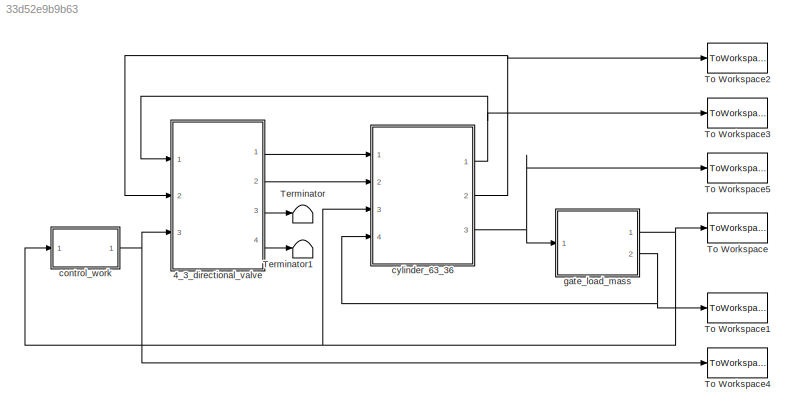
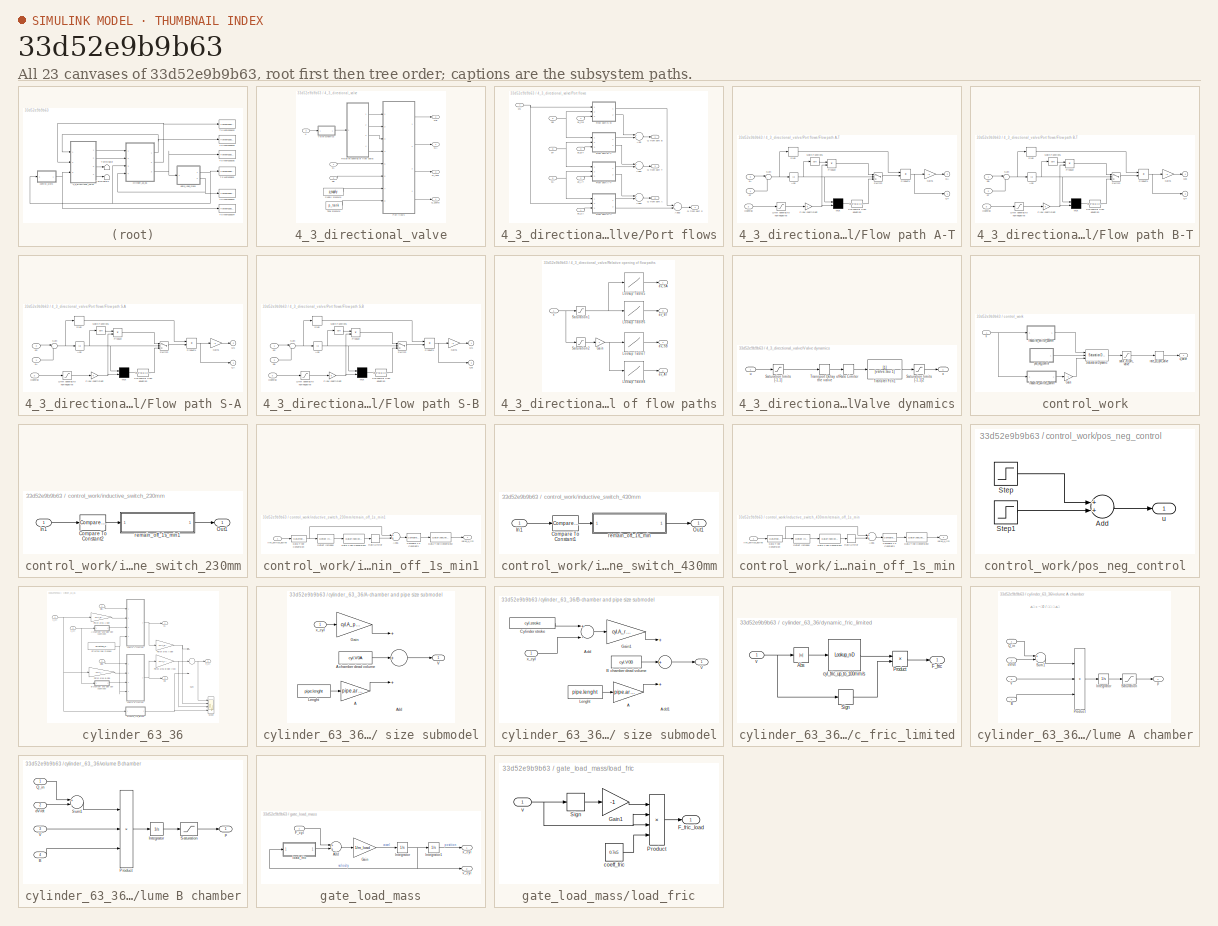
[diagram: thumbnail index - all 23 canvases of the model, root first then tree order]
MODEL slx_33d52e9b9b63
KIND model
CONFIG AbsTol = auto
CONFIG EnableMultiTasking = on
CONFIG FixedStep = 1e-3
CONFIG MaxStep = 1e-3
CONFIG MinStep = auto
CONFIG RelTol = 1e-3
CONFIG SampleTimeConstraint = Unconstrained
CONFIG Solver = FixedStepAuto
CONFIG SolverName = FixedStepAuto
CONFIG StartTime = 0
CONFIG StopTime = 15
BLOCK [SubSystem] 4_3_directional_valve
  Ports = [3, 4]
  RequestExecContextInheritance = off
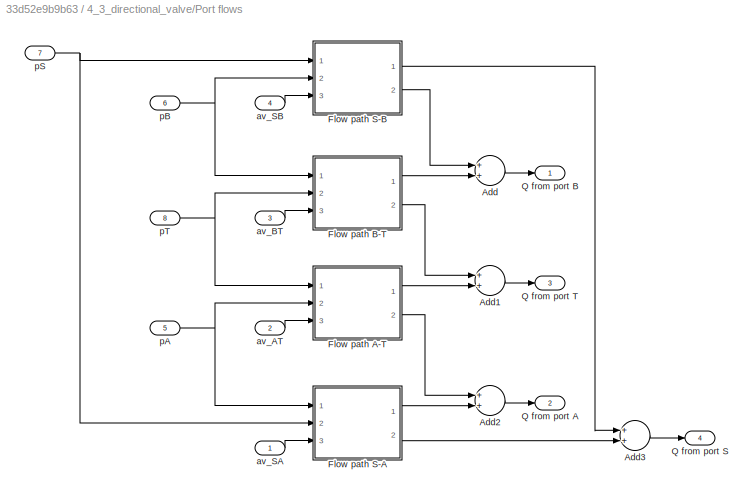
BLOCK [SubSystem] 4_3_directional_valve/Port flows
  Ports = [8, 4]
  RequestExecContextInheritance = off
BLOCK [Sum] 4_3_directional_valve/Port flows/Add
  InputSameDT = off
  OutDataTypeStr = Inherit: Inherit via internal rule
  Ports = [2, 1]
  SaturateOnIntegerOverflow = off
BLOCK [Sum] 4_3_directional_valve/Port flows/Add1
  InputSameDT = off
  OutDataTypeStr = Inherit: Inherit via internal rule
  Ports = [2, 1]
  SaturateOnIntegerOverflow = off
BLOCK [Sum] 4_3_directional_valve/Port flows/Add2
  InputSameDT = off
  OutDataTypeStr = Inherit: Inherit via internal rule
  Ports = [2, 1]
  SaturateOnIntegerOverflow = off
BLOCK [Sum] 4_3_directional_valve/Port flows/Add3
  InputSameDT = off
  OutDataTypeStr = Inherit: Inherit via internal rule
  Ports = [2, 1]
  SaturateOnIntegerOverflow = off
BLOCK [SubSystem] 4_3_directional_valve/Port flows/Flow path A-T
  Ports = [3, 2]
  RequestExecContextInheritance = off
BLOCK [Abs] 4_3_directional_valve/Port flows/Flow path A-T/Abs
  ZeroCross = off
BLOCK [Gain] 4_3_directional_valve/Port flows/Flow path A-T/Flow coefficient
  Gain = K
BLOCK [Gain] 4_3_directional_valve/Port flows/Flow path A-T/Gain1
  Gain = -1
BLOCK [Saturate] 4_3_directional_valve/Port flows/Flow path A-T/Limit opening to non-negative
  InputPortMap = u0
  LowerLimit = 0
  Ports = [1, 1]
  UpperLimit = inf
BLOCK [Math] 4_3_directional_valve/Port flows/Flow path A-T/Math Function1
  Operator = sqrt
  Ports = [1, 1]
BLOCK [Mux] 4_3_directional_valve/Port flows/Flow path A-T/Mux
  Inputs = 2
  Ports = [2, 1]
BLOCK [Inport] 4_3_directional_valve/Port flows/Flow path A-T/Opening
  IconDisplay = Port number
  Port = 3
BLOCK [Fcn] 4_3_directional_valve/Port flows/Flow path A-T/Polynomial flow equation
  Expr = u[2]*u[1]/2.0/sqrt(ptr)*(3-u[1]/ptr)
BLOCK [Product] 4_3_directional_valve/Port flows/Flow path A-T/Product
  Ports = [2, 1]
  RndMeth = Floor
BLOCK [Product] 4_3_directional_valve/Port flows/Flow path A-T/Product1
  Ports = [2, 1]
  RndMeth = Floor
BLOCK [Outport] 4_3_directional_valve/Port flows/Flow path A-T/QA
  IconDisplay = Port number
  InitialOutput = 0
  Port = 2
BLOCK [Outport] 4_3_directional_valve/Port flows/Flow path A-T/QT
  IconDisplay = Port number
  InitialOutput = 0
BLOCK [Signum] 4_3_directional_valve/Port flows/Flow path A-T/Sign
  ZeroCross = off
BLOCK [Sum] 4_3_directional_valve/Port flows/Flow path A-T/Sum
  IconShape = round
  InputSameDT = off
  Inputs = |+-
  OutDataTypeStr = Inherit: Inherit via internal rule
  Ports = [2, 1]
  SaturateOnIntegerOverflow = off
BLOCK [Switch] 4_3_directional_valve/Port flows/Flow path A-T/Switch
  Threshold = ptr
  ZeroCross = off
BLOCK [Inport] 4_3_directional_valve/Port flows/Flow path A-T/pA
  IconDisplay = Port number
  Port = 2
BLOCK [Inport] 4_3_directional_valve/Port flows/Flow path A-T/pT
  IconDisplay = Port number
BLOCK [SubSystem] 4_3_directional_valve/Port flows/Flow path B-T
  Ports = [3, 2]
  RequestExecContextInheritance = off
BLOCK [Abs] 4_3_directional_valve/Port flows/Flow path B-T/Abs
  ZeroCross = off
BLOCK [Gain] 4_3_directional_valve/Port flows/Flow path B-T/Flow coefficient
  Gain = K
BLOCK [Gain] 4_3_directional_valve/Port flows/Flow path B-T/Gain1
  Gain = -1
BLOCK [Saturate] 4_3_directional_valve/Port flows/Flow path B-T/Limit opening to non-negative
  InputPortMap = u0
  LowerLimit = 0
  Ports = [1, 1]
  UpperLimit = inf
BLOCK [Math] 4_3_directional_valve/Port flows/Flow path B-T/Math Function1
  Operator = sqrt
  Ports = [1, 1]
BLOCK [Mux] 4_3_directional_valve/Port flows/Flow path B-T/Mux
  Inputs = 2
  Ports = [2, 1]
BLOCK [Inport] 4_3_directional_valve/Port flows/Flow path B-T/Opening
  IconDisplay = Port number
  Port = 3
BLOCK [Fcn] 4_3_directional_valve/Port flows/Flow path B-T/Polynomial flow equation
  Expr = u[2]*u[1]/2.0/sqrt(ptr)*(3-u[1]/ptr)
BLOCK [Product] 4_3_directional_valve/Port flows/Flow path B-T/Product
  Ports = [2, 1]
  RndMeth = Floor
BLOCK [Product] 4_3_directional_valve/Port flows/Flow path B-T/Product1
  Ports = [2, 1]
  RndMeth = Floor
BLOCK [Outport] 4_3_directional_valve/Port flows/Flow path B-T/QB
  IconDisplay = Port number
  InitialOutput = 0
BLOCK [Outport] 4_3_directional_valve/Port flows/Flow path B-T/QT
  IconDisplay = Port number
  InitialOutput = 0
  Port = 2
BLOCK [Signum] 4_3_directional_valve/Port flows/Flow path B-T/Sign
  ZeroCross = off
BLOCK [Sum] 4_3_directional_valve/Port flows/Flow path B-T/Sum
  IconShape = round
  InputSameDT = off
  Inputs = |+-
  OutDataTypeStr = Inherit: Inherit via internal rule
  Ports = [2, 1]
  SaturateOnIntegerOverflow = off
BLOCK [Switch] 4_3_directional_valve/Port flows/Flow path B-T/Switch
  Threshold = ptr
  ZeroCross = off
BLOCK [Inport] 4_3_directional_valve/Port flows/Flow path B-T/pB
  IconDisplay = Port number
BLOCK [Inport] 4_3_directional_valve/Port flows/Flow path B-T/pT
  IconDisplay = Port number
  Port = 2
BLOCK [SubSystem] 4_3_directional_valve/Port flows/Flow path S-A
  Ports = [3, 2]
  RequestExecContextInheritance = off
BLOCK [Abs] 4_3_directional_valve/Port flows/Flow path S-A/Abs
  ZeroCross = off
BLOCK [Gain] 4_3_directional_valve/Port flows/Flow path S-A/Flow coefficient
  Gain = K
BLOCK [Gain] 4_3_directional_valve/Port flows/Flow path S-A/Gain1
  Gain = -1
BLOCK [Saturate] 4_3_directional_valve/Port flows/Flow path S-A/Limit opening to non-negative
  InputPortMap = u0
  LowerLimit = 0
  Ports = [1, 1]
  UpperLimit = inf
BLOCK [Math] 4_3_directional_valve/Port flows/Flow path S-A/Math Function1
  Operator = sqrt
  Ports = [1, 1]
BLOCK [Mux] 4_3_directional_valve/Port flows/Flow path S-A/Mux
  Inputs = 2
  Ports = [2, 1]
BLOCK [Inport] 4_3_directional_valve/Port flows/Flow path S-A/Opening
  IconDisplay = Port number
  Port = 3
BLOCK [Fcn] 4_3_directional_valve/Port flows/Flow path S-A/Polynomial flow equation
  Expr = u[2]*u[1]/2.0/sqrt(ptr)*(3-u[1]/ptr)
BLOCK [Product] 4_3_directional_valve/Port flows/Flow path S-A/Product
  Ports = [2, 1]
  RndMeth = Floor
BLOCK [Product] 4_3_directional_valve/Port flows/Flow path S-A/Product1
  Ports = [2, 1]
  RndMeth = Floor
BLOCK [Outport] 4_3_directional_valve/Port flows/Flow path S-A/QA
  IconDisplay = Port number
  InitialOutput = 0
BLOCK [Outport] 4_3_directional_valve/Port flows/Flow path S-A/QS
  IconDisplay = Port number
  InitialOutput = 0
  Port = 2
BLOCK [Signum] 4_3_directional_valve/Port flows/Flow path S-A/Sign
  ZeroCross = off
BLOCK [Sum] 4_3_directional_valve/Port flows/Flow path S-A/Sum
  IconShape = round
  InputSameDT = off
  Inputs = |+-
  OutDataTypeStr = Inherit: Inherit via internal rule
  Ports = [2, 1]
  SaturateOnIntegerOverflow = off
BLOCK [Switch] 4_3_directional_valve/Port flows/Flow path S-A/Switch
  Threshold = ptr
  ZeroCross = off
BLOCK [Inport] 4_3_directional_valve/Port flows/Flow path S-A/pA
  IconDisplay = Port number
BLOCK [Inport] 4_3_directional_valve/Port flows/Flow path S-A/pS
  IconDisplay = Port number
  Port = 2
BLOCK [SubSystem] 4_3_directional_valve/Port flows/Flow path S-B
  Ports = [3, 2]
  RequestExecContextInheritance = off
BLOCK [Abs] 4_3_directional_valve/Port flows/Flow path S-B/Abs
  ZeroCross = off
BLOCK [Gain] 4_3_directional_valve/Port flows/Flow path S-B/Flow coefficient
  Gain = K
BLOCK [Gain] 4_3_directional_valve/Port flows/Flow path S-B/Gain1
  Gain = -1
BLOCK [Saturate] 4_3_directional_valve/Port flows/Flow path S-B/Limit opening to non-negative
  InputPortMap = u0
  LowerLimit = 0
  Ports = [1, 1]
  UpperLimit = inf
BLOCK [Math] 4_3_directional_valve/Port flows/Flow path S-B/Math Function1
  Operator = sqrt
  Ports = [1, 1]
BLOCK [Mux] 4_3_directional_valve/Port flows/Flow path S-B/Mux
  Inputs = 2
  Ports = [2, 1]
BLOCK [Inport] 4_3_directional_valve/Port flows/Flow path S-B/Opening
  IconDisplay = Port number
  Port = 3
BLOCK [Fcn] 4_3_directional_valve/Port flows/Flow path S-B/Polynomial flow equation
  Expr = u[2]*u[1]/2.0/sqrt(ptr)*(3-u[1]/ptr)
BLOCK [Product] 4_3_directional_valve/Port flows/Flow path S-B/Product
  Ports = [2, 1]
  RndMeth = Floor
BLOCK [Product] 4_3_directional_valve/Port flows/Flow path S-B/Product1
  Ports = [2, 1]
  RndMeth = Floor
BLOCK [Outport] 4_3_directional_valve/Port flows/Flow path S-B/QB
  IconDisplay = Port number
  InitialOutput = 0
  Port = 2
BLOCK [Outport] 4_3_directional_valve/Port flows/Flow path S-B/QS
  IconDisplay = Port number
  InitialOutput = 0
BLOCK [Signum] 4_3_directional_valve/Port flows/Flow path S-B/Sign
  ZeroCross = off
BLOCK [Sum] 4_3_directional_valve/Port flows/Flow path S-B/Sum
  IconShape = round
  InputSameDT = off
  Inputs = |+-
  OutDataTypeStr = Inherit: Inherit via internal rule
  Ports = [2, 1]
  SaturateOnIntegerOverflow = off
BLOCK [Switch] 4_3_directional_valve/Port flows/Flow path S-B/Switch
  Threshold = ptr
  ZeroCross = off
BLOCK [Inport] 4_3_directional_valve/Port flows/Flow path S-B/pB
  IconDisplay = Port number
  Port = 2
BLOCK [Inport] 4_3_directional_valve/Port flows/Flow path S-B/pS
  IconDisplay = Port number
BLOCK [Outport] 4_3_directional_valve/Port flows/Q from port A
  IconDisplay = Port number
  Port = 2
BLOCK [Outport] 4_3_directional_valve/Port flows/Q from port B
  IconDisplay = Port number
BLOCK [Outport] 4_3_directional_valve/Port flows/Q from port S
  IconDisplay = Port number
  Port = 4
BLOCK [Outport] 4_3_directional_valve/Port flows/Q from port T
  IconDisplay = Port number
  Port = 3
BLOCK [Inport] 4_3_directional_valve/Port flows/av_AT
  IconDisplay = Port number
  Port = 2
BLOCK [Inport] 4_3_directional_valve/Port flows/av_BT
  IconDisplay = Port number
  Port = 3
BLOCK [Inport] 4_3_directional_valve/Port flows/av_SA
  IconDisplay = Port number
BLOCK [Inport] 4_3_directional_valve/Port flows/av_SB
  IconDisplay = Port number
  Port = 4
BLOCK [Inport] 4_3_directional_valve/Port flows/pA
  IconDisplay = Port number
  Port = 5
BLOCK [Inport] 4_3_directional_valve/Port flows/pB
  IconDisplay = Port number
  Port = 6
BLOCK [Inport] 4_3_directional_valve/Port flows/pS
  IconDisplay = Port number
  Port = 7
BLOCK [Inport] 4_3_directional_valve/Port flows/pT
  IconDisplay = Port number
  Port = 8
BLOCK [Outport] 4_3_directional_valve/QA
  IconDisplay = Port number
BLOCK [Outport] 4_3_directional_valve/QB
  IconDisplay = Port number
  Port = 2
BLOCK [Outport] 4_3_directional_valve/Q_pump
  IconDisplay = Port number
  Port = 4
BLOCK [Outport] 4_3_directional_valve/Q_tank 
  IconDisplay = Port number
  Port = 3
BLOCK [SubSystem] 4_3_directional_valve/Relative opening of flow paths
  Ports = [1, 4]
  RequestExecContextInheritance = off
BLOCK [Gain] 4_3_directional_valve/Relative opening of flow paths/Gain
  Gain = -1
  OutDataTypeStr = Inherit: Inherit via internal rule
  ParamDataTypeStr = Inherit: Inherit via internal rule
  SaturateOnIntegerOverflow = off
BLOCK [Lookup] 4_3_directional_valve/Relative opening of flow paths/Lookup Table5
  InputValues = [0.01 0.05 0.1 0.2 0.3 0.4 1]
  SaturateOnIntegerOverflow = off
  Table = [0.01 0.039 0.078 0.16 0.23 0.31 0.78]
BLOCK [Lookup] 4_3_directional_valve/Relative opening of flow paths/Lookup Table6
  InputValues = [0.01 0.05 0.1 0.2 0.3 0.4 1]
  SaturateOnIntegerOverflow = off
  Table = [0.01 0.036 0.072 0.14 0.22 0.29 0.72]
BLOCK [Lookup] 4_3_directional_valve/Relative opening of flow paths/Lookup Table7
  InputValues = [0.01 0.05 0.1 0.2 0.3 0.4 1]
  SaturateOnIntegerOverflow = off
  Table = [0.01 0.039 0.077 0.15 0.23 0.31 0.77]
BLOCK [Lookup] 4_3_directional_valve/Relative opening of flow paths/Lookup Table8
  InputValues = [0.01 0.05 0.1 0.2 0.3 0.4 1]
  SaturateOnIntegerOverflow = off
  Table = [0.01 0.035 0.070 0.14 0.21 0.28 0.70]
BLOCK [Saturate] 4_3_directional_valve/Relative opening of flow paths/Saturation1
  InputPortMap = u0
  LowerLimit = 0
  Ports = [1, 1]
  UpperLimit = 1
BLOCK [Saturate] 4_3_directional_valve/Relative opening of flow paths/Saturation2
  InputPortMap = u0
  LowerLimit = -1
  Ports = [1, 1]
  UpperLimit = 0
BLOCK [Outport] 4_3_directional_valve/Relative opening of flow paths/av_AT
  IconDisplay = Port number
  Port = 2
BLOCK [Outport] 4_3_directional_valve/Relative opening of flow paths/av_BT
  IconDisplay = Port number
  Port = 3
BLOCK [Outport] 4_3_directional_valve/Relative opening of flow paths/av_SA
  IconDisplay = Port number
BLOCK [Outport] 4_3_directional_valve/Relative opening of flow paths/av_SB
  IconDisplay = Port number
  Port = 4
BLOCK [Inport] 4_3_directional_valve/Relative opening of flow paths/x
  IconDisplay = Port number
BLOCK [Constant] 4_3_directional_valve/Supply pressure
  Value = p_supply
BLOCK [Constant] 4_3_directional_valve/Tank pressure
  Value = p_tank
BLOCK [SubSystem] 4_3_directional_valve/Valve dynamics
  Ports = [1, 1]
  RequestExecContextInheritance = off
BLOCK [RateLimiter] 4_3_directional_valve/Valve dynamics/Rate Limiter
  FallingSlewLimit = -valve.ratelimit
  RisingSlewLimit = valve.ratelimit
  SampleTimeMode = inherited
BLOCK [Saturate] 4_3_directional_valve/Valve dynamics/Saturation limits [-1,1]
  InputPortMap = u0
  LowerLimit = -1
  Ports = [1, 1]
  UpperLimit = 1
BLOCK [Saturate] 4_3_directional_valve/Valve dynamics/Saturation limits [-1,1]2
  InputPortMap = u0
  LowerLimit = -1
  Ports = [1, 1]
  UpperLimit = 1
BLOCK [TransferFcn] 4_3_directional_valve/Valve dynamics/Transfer Fcn1
  Denominator = [valve.tau 1]
BLOCK [TransportDelay] 4_3_directional_valve/Valve dynamics/Transport Delay of the valve
  DelayTime = valve.delay
  Ports = [1, 1]
BLOCK [Inport] 4_3_directional_valve/Valve dynamics/u
  IconDisplay = Port number
BLOCK [Outport] 4_3_directional_valve/Valve dynamics/x
  IconDisplay = Port number
BLOCK [Inport] 4_3_directional_valve/pA
  IconDisplay = Port number
BLOCK [Inport] 4_3_directional_valve/pB
  IconDisplay = Port number
  Port = 2
BLOCK [Inport] 4_3_directional_valve/u
  IconDisplay = Port number
  Port = 3
BLOCK [Terminator] Terminator
BLOCK [Terminator] Terminator1
BLOCK [ToWorkspace] To Workspace
  MaxDataPoints = inf
  Ports = [1]
  SampleTime = -1
  VariableName = x_sim
BLOCK [ToWorkspace] To Workspace1
  MaxDataPoints = inf
  Ports = [1]
  SampleTime = -1
  VariableName = v_sim
BLOCK [ToWorkspace] To Workspace2
  MaxDataPoints = inf
  Ports = [1]
  SampleTime = -1
  VariableName = pB_sim
BLOCK [ToWorkspace] To Workspace3
  MaxDataPoints = inf
  Ports = [1]
  SampleTime = -1
  VariableName = pA_sim
BLOCK [ToWorkspace] To Workspace4
  MaxDataPoints = inf
  Ports = [1]
  SampleTime = -1
  VariableName = u_sim
BLOCK [ToWorkspace] To Workspace5
  MaxDataPoints = inf
  Ports = [1]
  SampleTime = -1
  VariableName = F_sim
BLOCK [SubSystem] control_work
  Ports = [1, 1]
  RequestExecContextInheritance = off
BLOCK [Gain] control_work/Gain
  Gain = -1
  OutDataTypeStr = Inherit: Inherit via internal rule
  ParamDataTypeStr = Inherit: Inherit via internal rule
  SaturateOnIntegerOverflow = off
BLOCK [Reference] control_work/Saturation Dynamic  REF=simulink/Discontinuities/Saturation
Dynamic
  Ports = [3, 1]
  SourceBlock = simulink/Discontinuities/Saturation\nDynamic
  SourceProductBaseCode = SL
  SourceProductName = Simulink
  SourceType = Saturation Dynamic
BLOCK [SubSystem] control_work/inductive_switch_230mm
  Ports = [1, 1]
  RequestExecContextInheritance = off
BLOCK [Reference] control_work/inductive_switch_230mm/Compare To Constant2  REF=simulink/Logic and Bit
Operations/Compare
To Constant
  Ports = [1, 1]
  SourceBlock = simulink/Logic and Bit\nOperations/Compare\nTo Constant
  SourceProductBaseCode = SL
  SourceProductName = Simulink
  SourceType = Compare To Constant
BLOCK [Inport] control_work/inductive_switch_230mm/In1
  IconDisplay = Port number
BLOCK [Outport] control_work/inductive_switch_230mm/Out1
  IconDisplay = Port number
BLOCK [SubSystem] control_work/inductive_switch_230mm/remain_off_1s_min1
  Ports = [1, 1]
  RequestExecContextInheritance = off
BLOCK [Sum] control_work/inductive_switch_230mm/remain_off_1s_min1/Add1
  InputSameDT = off
  OutDataTypeStr = Inherit: Inherit via internal rule
  Ports = [2, 1]
  SaturateOnIntegerOverflow = off
BLOCK [Reference] control_work/inductive_switch_230mm/remain_off_1s_min1/Compare To Constant3  REF=simulink/Logic and Bit
Operations/Compare
To Constant
  Ports = [1, 1]
  SourceBlock = simulink/Logic and Bit\nOperations/Compare\nTo Constant
  SourceProductBaseCode = SL
  SourceProductName = Simulink
  SourceType = Compare To Constant
BLOCK [DataTypeConversion] control_work/inductive_switch_230mm/remain_off_1s_min1/Data Type Conversion
  OutDataTypeStr = double
  RndMeth = Floor
  SaturateOnIntegerOverflow = off
BLOCK [DataTypeConversion] control_work/inductive_switch_230mm/remain_off_1s_min1/Data Type Conversion1
  OutDataTypeStr = double
  RndMeth = Floor
  SaturateOnIntegerOverflow = off
BLOCK [DataTypeConversion] control_work/inductive_switch_230mm/remain_off_1s_min1/Data Type Conversion2
  OutDataTypeStr = double
  RndMeth = Floor
  SaturateOnIntegerOverflow = off
BLOCK [Reference] control_work/inductive_switch_230mm/remain_off_1s_min1/Detect Increase  REF=simulink/Logic and Bit
Operations/Detect
Increase
  Ports = [1, 1]
  SourceBlock = simulink/Logic and Bit\nOperations/Detect\nIncrease
  SourceProductBaseCode = SL
  SourceProductName = Simulink
  SourceType = Detect Increase
BLOCK [RateLimiter] control_work/inductive_switch_230mm/remain_off_1s_min1/Rate Limiter
  RisingSlewLimit = 1e6
  SampleTimeMode = inherited
BLOCK [Inport] control_work/inductive_switch_230mm/remain_off_1s_min1/lim_switch_active
  IconDisplay = Port number
BLOCK [Outport] control_work/inductive_switch_230mm/remain_off_1s_min1/valve_u_lim
  IconDisplay = Port number
BLOCK [SubSystem] control_work/inductive_switch_430mm
  Ports = [1, 1]
  RequestExecContextInheritance = off
BLOCK [Reference] control_work/inductive_switch_430mm/Compare To Constant1  REF=simulink/Logic and Bit
Operations/Compare
To Constant
  Ports = [1, 1]
  SourceBlock = simulink/Logic and Bit\nOperations/Compare\nTo Constant
  SourceProductBaseCode = SL
  SourceProductName = Simulink
  SourceType = Compare To Constant
BLOCK [Inport] control_work/inductive_switch_430mm/In1
  IconDisplay = Port number
BLOCK [Outport] control_work/inductive_switch_430mm/Out1
  IconDisplay = Port number
BLOCK [SubSystem] control_work/inductive_switch_430mm/remain_off_1s_min
  Ports = [1, 1]
  RequestExecContextInheritance = off
BLOCK [Sum] control_work/inductive_switch_430mm/remain_off_1s_min/Add1
  InputSameDT = off
  OutDataTypeStr = Inherit: Inherit via internal rule
  Ports = [2, 1]
  SaturateOnIntegerOverflow = off
BLOCK [Reference] control_work/inductive_switch_430mm/remain_off_1s_min/Compare To Constant3  REF=simulink/Logic and Bit
Operations/Compare
To Constant
  Ports = [1, 1]
  SourceBlock = simulink/Logic and Bit\nOperations/Compare\nTo Constant
  SourceProductBaseCode = SL
  SourceProductName = Simulink
  SourceType = Compare To Constant
BLOCK [DataTypeConversion] control_work/inductive_switch_430mm/remain_off_1s_min/Data Type Conversion
  OutDataTypeStr = double
  RndMeth = Floor
  SaturateOnIntegerOverflow = off
BLOCK [DataTypeConversion] control_work/inductive_switch_430mm/remain_off_1s_min/Data Type Conversion1
  OutDataTypeStr = double
  RndMeth = Floor
  SaturateOnIntegerOverflow = off
BLOCK [DataTypeConversion] control_work/inductive_switch_430mm/remain_off_1s_min/Data Type Conversion2
  OutDataTypeStr = double
  RndMeth = Floor
  SaturateOnIntegerOverflow = off
BLOCK [Reference] control_work/inductive_switch_430mm/remain_off_1s_min/Detect Increase  REF=simulink/Logic and Bit
Operations/Detect
Increase
  Ports = [1, 1]
  SourceBlock = simulink/Logic and Bit\nOperations/Detect\nIncrease
  SourceProductBaseCode = SL
  SourceProductName = Simulink
  SourceType = Detect Increase
BLOCK [RateLimiter] control_work/inductive_switch_430mm/remain_off_1s_min/Rate Limiter
  RisingSlewLimit = 1e6
  SampleTimeMode = inherited
BLOCK [Inport] control_work/inductive_switch_430mm/remain_off_1s_min/lim_switch_active
  IconDisplay = Port number
BLOCK [Outport] control_work/inductive_switch_430mm/remain_off_1s_min/valve_u_lim
  IconDisplay = Port number
BLOCK [SubSystem] control_work/pos_neg_control
  Ports = [0, 1]
  RequestExecContextInheritance = off
BLOCK [Sum] control_work/pos_neg_control/Add
  InputSameDT = off
  OutDataTypeStr = Inherit: Inherit via internal rule
  Ports = [2, 1]
  SaturateOnIntegerOverflow = off
BLOCK [Step] control_work/pos_neg_control/Step
  SampleTime = 0
BLOCK [Step] control_work/pos_neg_control/Step1
  After = -2
  SampleTime = 0
  Time = 10
BLOCK [Outport] control_work/pos_neg_control/u
  IconDisplay = Port number
BLOCK [RateLimiter] control_work/rate_20_lpm_valve 
  FallingSlewLimit = -1/0.3
  RisingSlewLimit = 1/0.3
  SampleTimeMode = inherited
BLOCK [Saturate] control_work/satur_20_lpm_valve
  InputPortMap = u0
  LowerLimit = -0.88
  Ports = [1, 1]
  UpperLimit = 0.65
BLOCK [Outport] control_work/u_valve
  IconDisplay = Port number
BLOCK [Inport] control_work/x
  IconDisplay = Port number
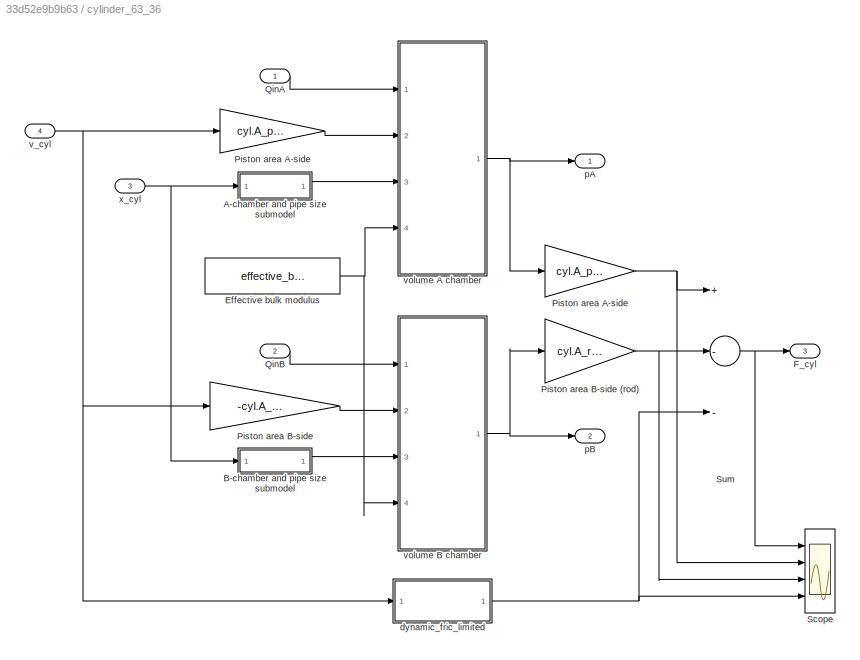
BLOCK [SubSystem] cylinder_63_36
  Ports = [4, 3]
  RequestExecContextInheritance = off
BLOCK [SubSystem] cylinder_63_36/A-chamber and pipe size submodel
  Ports = [1, 1]
  RequestExecContextInheritance = off
BLOCK [Gain] cylinder_63_36/A-chamber and pipe size submodel/A
  Gain = pipe.area
  OutDataTypeStr = Inherit: Inherit via internal rule
  ParamDataTypeStr = Inherit: Inherit via internal rule
  SaturateOnIntegerOverflow = off
BLOCK [Constant] cylinder_63_36/A-chamber and pipe size submodel/A chamber dead volume
  Value = cyl.V0A
BLOCK [Sum] cylinder_63_36/A-chamber and pipe size submodel/Add
  InputSameDT = off
  Inputs = +++
  OutDataTypeStr = Inherit: Inherit via internal rule
  Ports = [3, 1]
  SaturateOnIntegerOverflow = off
BLOCK [Gain] cylinder_63_36/A-chamber and pipe size submodel/Gain
  Gain = cyl.A_piston
  OutDataTypeStr = Inherit: Inherit via internal rule
  ParamDataTypeStr = Inherit: Inherit via internal rule
  SaturateOnIntegerOverflow = off
BLOCK [Constant] cylinder_63_36/A-chamber and pipe size submodel/Lenght
  Value = pipe.lenght
BLOCK [Outport] cylinder_63_36/A-chamber and pipe size submodel/V
  IconDisplay = Port number
BLOCK [Inport] cylinder_63_36/A-chamber and pipe size submodel/x_cyl
  IconDisplay = Port number
BLOCK [SubSystem] cylinder_63_36/B-chamber and pipe size submodel
  Ports = [1, 1]
  RequestExecContextInheritance = off
BLOCK [Gain] cylinder_63_36/B-chamber and pipe size submodel/A
  Gain = pipe.area
  OutDataTypeStr = Inherit: Inherit via internal rule
  ParamDataTypeStr = Inherit: Inherit via internal rule
  SaturateOnIntegerOverflow = off
BLOCK [Sum] cylinder_63_36/B-chamber and pipe size submodel/Add
  InputSameDT = off
  Inputs = +-
  OutDataTypeStr = Inherit: Inherit via internal rule
  Ports = [2, 1]
  SaturateOnIntegerOverflow = off
BLOCK [Sum] cylinder_63_36/B-chamber and pipe size submodel/Add1
  InputSameDT = off
  Inputs = +++
  OutDataTypeStr = Inherit: Inherit via internal rule
  Ports = [3, 1]
  SaturateOnIntegerOverflow = off
BLOCK [Constant] cylinder_63_36/B-chamber and pipe size submodel/B chamber dead volume
  Value = cyl.V0B
BLOCK [Constant] cylinder_63_36/B-chamber and pipe size submodel/Cylinder stroke
  Value = cyl.stroke
BLOCK [Gain] cylinder_63_36/B-chamber and pipe size submodel/Gain1
  Gain = cyl.A_rodside
  OutDataTypeStr = Inherit: Inherit via internal rule
  ParamDataTypeStr = Inherit: Inherit via internal rule
  SaturateOnIntegerOverflow = off
BLOCK [Constant] cylinder_63_36/B-chamber and pipe size submodel/Lenght
  Value = pipe.lenght
BLOCK [Outport] cylinder_63_36/B-chamber and pipe size submodel/V
  IconDisplay = Port number
BLOCK [Inport] cylinder_63_36/B-chamber and pipe size submodel/x_cyl
  IconDisplay = Port number
BLOCK [Constant] cylinder_63_36/Effective bulk modulus
  Value = effective_bulkmodulus
BLOCK [Outport] cylinder_63_36/F_cyl
  IconDisplay = Port number
  Port = 3
BLOCK [Gain] cylinder_63_36/Piston area A-side
  Gain = cyl.A_piston
  OutDataTypeStr = Inherit: Inherit via internal rule
  ParamDataTypeStr = Inherit: Inherit via internal rule
  SaturateOnIntegerOverflow = off
BLOCK [Gain] cylinder_63_36/Piston area B-side
  Gain = -cyl.A_rodside
  OutDataTypeStr = Inherit: Inherit via internal rule
  ParamDataTypeStr = Inherit: Inherit via internal rule
  SaturateOnIntegerOverflow = off
BLOCK [Gain] cylinder_63_36/Piston area B-side (rod)
  Gain = cyl.A_rodside
  OutDataTypeStr = Inherit: Inherit via internal rule
  ParamDataTypeStr = Inherit: Inherit via internal rule
  SaturateOnIntegerOverflow = off
BLOCK [Inport] cylinder_63_36/QinA
  IconDisplay = Port number
BLOCK [Inport] cylinder_63_36/QinB
  IconDisplay = Port number
  Port = 2
BLOCK [Scope] cylinder_63_36/Scope
  Floating = off
  NumInputPorts = 4
  Ports = [4]
  ScopeSpecificationString = Simulink.scopes.TimeScopeBlockCfg('CurrentConfiguration', extmgr.ConfigurationSet(extmgr.Configuration('Core','General UI',true),extmgr.Configuration('Core','Source UI',true),extmgr.Configuration('Sources','WiredSimulink',true),extmgr.Configuration('Visuals','Time Domain',true,'SerializedDisplays',{struct('MinYLimReal','-3356.48237','MaxYLimReal','15799.75819','YLabelReal','','MinYLimMag','  0.000...<+1451ch>
BLOCK [Sum] cylinder_63_36/Sum
  InputSameDT = off
  Inputs = +--
  OutDataTypeStr = Inherit: Inherit via internal rule
  Ports = [3, 1]
  SaturateOnIntegerOverflow = off
BLOCK [SubSystem] cylinder_63_36/dynamic_fric_limited
  Ports = [1, 1]
  RequestExecContextInheritance = off
BLOCK [Abs] cylinder_63_36/dynamic_fric_limited/Abs
  SaturateOnIntegerOverflow = off
BLOCK [Outport] cylinder_63_36/dynamic_fric_limited/F_fric
  IconDisplay = Port number
BLOCK [Product] cylinder_63_36/dynamic_fric_limited/Product
  InputSameDT = off
  OutDataTypeStr = Inherit: Inherit via internal rule
  Ports = [2, 1]
  RndMeth = Floor
  SaturateOnIntegerOverflow = off
BLOCK [Signum] cylinder_63_36/dynamic_fric_limited/Sign
BLOCK [Lookup_n-D] cylinder_63_36/dynamic_fric_limited/cyl_fric_up_to_100mm//s
  BreakpointsForDimension1 = [0\n5\n10\n15\n20\n25\n30\n35\n40\n45\n50\n55\n60\n65\n70\n75\n80\n85\n90\n95\n100]./1e3;
  InternalRulePriority = Speed
  NumberOfTableDimensions = 1
  Ports = [1, 1]
  RndMeth = Simplest
  Table = [0\n242\n550\n838\n996\n972\n850\n757\n728\n733\n744\n753\n759\n765\n770\n775\n780\n785\n790\n795\n800];
BLOCK [Inport] cylinder_63_36/dynamic_fric_limited/v
  IconDisplay = Port number
BLOCK [Outport] cylinder_63_36/pA
  IconDisplay = Port number
BLOCK [Outport] cylinder_63_36/pB
  IconDisplay = Port number
  Port = 2
BLOCK [Inport] cylinder_63_36/v_cyl
  IconDisplay = Port number
  Port = 4
BLOCK [SubSystem] cylinder_63_36/volume A chamber
  Ports = [4, 1]
  RequestExecContextInheritance = off
BLOCK [Inport] cylinder_63_36/volume A chamber/ B
  IconDisplay = Port number
  Port = 4
BLOCK [Inport] cylinder_63_36/volume A chamber/ V
  IconDisplay = Port number
  Port = 3
BLOCK [Inport] cylinder_63_36/volume A chamber/ dV//dt
  IconDisplay = Port number
  Port = 2
BLOCK [Integrator] cylinder_63_36/volume A chamber/Integrator
  AbsoluteTolerance = 10
  InitialCondition = cyl.p0A
  Ports = [1, 1]
BLOCK [Product] cylinder_63_36/volume A chamber/Product
  Inputs = */*
  Ports = [3, 1]
  RndMeth = Floor
BLOCK [Inport] cylinder_63_36/volume A chamber/Q_in
  IconDisplay = Port number
BLOCK [Saturate] cylinder_63_36/volume A chamber/Saturation
  InputPortMap = u0
  LowerLimit = -1e5
  Ports = [1, 1]
  UpperLimit = inf
BLOCK [Sum] cylinder_63_36/volume A chamber/Sum1
  Inputs = +-
  Ports = [2, 1]
BLOCK [Outport] cylinder_63_36/volume A chamber/p
  IconDisplay = Port number
BLOCK [SubSystem] cylinder_63_36/volume B chamber
  Ports = [4, 1]
  RequestExecContextInheritance = off
BLOCK [Inport] cylinder_63_36/volume B chamber/ B
  IconDisplay = Port number
  Port = 4
BLOCK [Inport] cylinder_63_36/volume B chamber/ V
  IconDisplay = Port number
  Port = 3
BLOCK [Inport] cylinder_63_36/volume B chamber/ dV//dt
  IconDisplay = Port number
  Port = 2
BLOCK [Integrator] cylinder_63_36/volume B chamber/Integrator
  AbsoluteTolerance = 10
  InitialCondition = cyl.p0B
  Ports = [1, 1]
BLOCK [Product] cylinder_63_36/volume B chamber/Product
  Inputs = */*
  Ports = [3, 1]
  RndMeth = Floor
BLOCK [Inport] cylinder_63_36/volume B chamber/Q_in
  IconDisplay = Port number
BLOCK [Saturate] cylinder_63_36/volume B chamber/Saturation
  InputPortMap = u0
  LowerLimit = -1e5
  Ports = [1, 1]
  UpperLimit = inf
BLOCK [Sum] cylinder_63_36/volume B chamber/Sum1
  Inputs = +-
  Ports = [2, 1]
BLOCK [Outport] cylinder_63_36/volume B chamber/p
  IconDisplay = Port number
BLOCK [Inport] cylinder_63_36/x_cyl
  IconDisplay = Port number
  Port = 3
BLOCK [SubSystem] gate_load_mass
  Ports = [1, 2]
  RequestExecContextInheritance = off
BLOCK [Sum] gate_load_mass/Add
  InputSameDT = off
  OutDataTypeStr = Inherit: Inherit via internal rule
  Ports = [2, 1]
  SaturateOnIntegerOverflow = off
BLOCK [Inport] gate_load_mass/F_cyl
  IconDisplay = Port number
BLOCK [Gain] gate_load_mass/Gain
  Gain = 1/m_load
  OutDataTypeStr = Inherit: Inherit via internal rule
  ParamDataTypeStr = Inherit: Inherit via internal rule
  SaturateOnIntegerOverflow = off
BLOCK [Integrator] gate_load_mass/Integrator
  Ports = [1, 1]
BLOCK [Integrator] gate_load_mass/Integrator1
  InitialCondition = cyl.x_init
  Ports = [1, 1]
BLOCK [SubSystem] gate_load_mass/load_fric
  Ports = [1, 1]
  RequestExecContextInheritance = off
BLOCK [Outport] gate_load_mass/load_fric/F_fric_load
  IconDisplay = Port number
BLOCK [Gain] gate_load_mass/load_fric/Gain1
  Gain = -1
  OutDataTypeStr = Inherit: Inherit via internal rule
  ParamDataTypeStr = Inherit: Inherit via internal rule
  SaturateOnIntegerOverflow = off
BLOCK [Product] gate_load_mass/load_fric/Product
  InputSameDT = off
  Inputs = 4
  OutDataTypeStr = Inherit: Inherit via internal rule
  Ports = [4, 1]
  RndMeth = Floor
  SaturateOnIntegerOverflow = off
BLOCK [Signum] gate_load_mass/load_fric/Sign
BLOCK [Constant] gate_load_mass/load_fric/coeff_fric
  Value = 0.7e5
BLOCK [Inport] gate_load_mass/load_fric/v
  IconDisplay = Port number
BLOCK [Outport] gate_load_mass/v_cyl
  IconDisplay = Port number
  Port = 2
BLOCK [Outport] gate_load_mass/x_cyl
  IconDisplay = Port number
ANNOTATION cylinder_63_36/volume A chamber: ∆𝑉 = −𝑉0 / 𝐵𝑛 ∗ ∆𝑝
LINE 4_3_directional_valve/Port flows/Add1:1 -> 4_3_directional_valve/Port flows/Q from port T:1
LINE 4_3_directional_valve/Port flows/Add2:1 -> 4_3_directional_valve/Port flows/Q from port A:1
LINE 4_3_directional_valve/Port flows/Add3:1 -> 4_3_directional_valve/Port flows/Q from port S:1
LINE 4_3_directional_valve/Port flows/Add:1 -> 4_3_directional_valve/Port flows/Q from port B:1
NET 4_3_directional_valve/Port flows/Flow path A-T/Abs:1 -> 4_3_directional_valve/Port flows/Flow path A-T/Math Function1:1, 4_3_directional_valve/Port flows/Flow path A-T/Mux:1, 4_3_directional_valve/Port flows/Flow path A-T/Switch:2
NET 4_3_directional_valve/Port flows/Flow path A-T/Flow coefficient:1 -> 4_3_directional_valve/Port flows/Flow path A-T/Mux:2, 4_3_directional_valve/Port flows/Flow path A-T/Product:2
LINE 4_3_directional_valve/Port flows/Flow path A-T/Gain1:1 -> 4_3_directional_valve/Port flows/Flow path A-T/QA:1
LINE 4_3_directional_valve/Port flows/Flow path A-T/Limit opening to non-negative:1 -> 4_3_directional_valve/Port flows/Flow path A-T/Flow coefficient:1
LINE 4_3_directional_valve/Port flows/Flow path A-T/Math Function1:1 -> 4_3_directional_valve/Port flows/Flow path A-T/Product:1
LINE 4_3_directional_valve/Port flows/Flow path A-T/Mux:1 -> 4_3_directional_valve/Port flows/Flow path A-T/Polynomial flow equation:1
LINE 4_3_directional_valve/Port flows/Flow path A-T/Opening:1 -> 4_3_directional_valve/Port flows/Flow path A-T/Limit opening to non-negative:1
LINE 4_3_directional_valve/Port flows/Flow path A-T/Polynomial flow equation:1 -> 4_3_directional_valve/Port flows/Flow path A-T/Switch:3
NET 4_3_directional_valve/Port flows/Flow path A-T/Product1:1 -> 4_3_directional_valve/Port flows/Flow path A-T/Gain1:1, 4_3_directional_valve/Port flows/Flow path A-T/QT:1
LINE 4_3_directional_valve/Port flows/Flow path A-T/Product:1 -> 4_3_directional_valve/Port flows/Flow path A-T/Switch:1
LINE 4_3_directional_valve/Port flows/Flow path A-T/Sign:1 -> 4_3_directional_valve/Port flows/Flow path A-T/Product1:1
NET 4_3_directional_valve/Port flows/Flow path A-T/Sum:1 -> 4_3_directional_valve/Port flows/Flow path A-T/Abs:1, 4_3_directional_valve/Port flows/Flow path A-T/Sign:1
LINE 4_3_directional_valve/Port flows/Flow path A-T/Switch:1 -> 4_3_directional_valve/Port flows/Flow path A-T/Product1:2
LINE 4_3_directional_valve/Port flows/Flow path A-T/pA:1 -> 4_3_directional_valve/Port flows/Flow path A-T/Sum:1
LINE 4_3_directional_valve/Port flows/Flow path A-T/pT:1 -> 4_3_directional_valve/Port flows/Flow path A-T/Sum:2
LINE 4_3_directional_valve/Port flows/Flow path A-T:1 -> 4_3_directional_valve/Port flows/Add1:2
LINE 4_3_directional_valve/Port flows/Flow path A-T:2 -> 4_3_directional_valve/Port flows/Add2:1
NET 4_3_directional_valve/Port flows/Flow path B-T/Abs:1 -> 4_3_directional_valve/Port flows/Flow path B-T/Math Function1:1, 4_3_directional_valve/Port flows/Flow path B-T/Mux:1, 4_3_directional_valve/Port flows/Flow path B-T/Switch:2
NET 4_3_directional_valve/Port flows/Flow path B-T/Flow coefficient:1 -> 4_3_directional_valve/Port flows/Flow path B-T/Mux:2, 4_3_directional_valve/Port flows/Flow path B-T/Product:2
LINE 4_3_directional_valve/Port flows/Flow path B-T/Gain1:1 -> 4_3_directional_valve/Port flows/Flow path B-T/QB:1
LINE 4_3_directional_valve/Port flows/Flow path B-T/Limit opening to non-negative:1 -> 4_3_directional_valve/Port flows/Flow path B-T/Flow coefficient:1
LINE 4_3_directional_valve/Port flows/Flow path B-T/Math Function1:1 -> 4_3_directional_valve/Port flows/Flow path B-T/Product:1
LINE 4_3_directional_valve/Port flows/Flow path B-T/Mux:1 -> 4_3_directional_valve/Port flows/Flow path B-T/Polynomial flow equation:1
LINE 4_3_directional_valve/Port flows/Flow path B-T/Opening:1 -> 4_3_directional_valve/Port flows/Flow path B-T/Limit opening to non-negative:1
LINE 4_3_directional_valve/Port flows/Flow path B-T/Polynomial flow equation:1 -> 4_3_directional_valve/Port flows/Flow path B-T/Switch:3
NET 4_3_directional_valve/Port flows/Flow path B-T/Product1:1 -> 4_3_directional_valve/Port flows/Flow path B-T/Gain1:1, 4_3_directional_valve/Port flows/Flow path B-T/QT:1
LINE 4_3_directional_valve/Port flows/Flow path B-T/Product:1 -> 4_3_directional_valve/Port flows/Flow path B-T/Switch:1
LINE 4_3_directional_valve/Port flows/Flow path B-T/Sign:1 -> 4_3_directional_valve/Port flows/Flow path B-T/Product1:1
NET 4_3_directional_valve/Port flows/Flow path B-T/Sum:1 -> 4_3_directional_valve/Port flows/Flow path B-T/Abs:1, 4_3_directional_valve/Port flows/Flow path B-T/Sign:1
LINE 4_3_directional_valve/Port flows/Flow path B-T/Switch:1 -> 4_3_directional_valve/Port flows/Flow path B-T/Product1:2
LINE 4_3_directional_valve/Port flows/Flow path B-T/pB:1 -> 4_3_directional_valve/Port flows/Flow path B-T/Sum:1
LINE 4_3_directional_valve/Port flows/Flow path B-T/pT:1 -> 4_3_directional_valve/Port flows/Flow path B-T/Sum:2
LINE 4_3_directional_valve/Port flows/Flow path B-T:1 -> 4_3_directional_valve/Port flows/Add:2
LINE 4_3_directional_valve/Port flows/Flow path B-T:2 -> 4_3_directional_valve/Port flows/Add1:1
NET 4_3_directional_valve/Port flows/Flow path S-A/Abs:1 -> 4_3_directional_valve/Port flows/Flow path S-A/Math Function1:1, 4_3_directional_valve/Port flows/Flow path S-A/Mux:1, 4_3_directional_valve/Port flows/Flow path S-A/Switch:2
NET 4_3_directional_valve/Port flows/Flow path S-A/Flow coefficient:1 -> 4_3_directional_valve/Port flows/Flow path S-A/Mux:2, 4_3_directional_valve/Port flows/Flow path S-A/Product:2
LINE 4_3_directional_valve/Port flows/Flow path S-A/Gain1:1 -> 4_3_directional_valve/Port flows/Flow path S-A/QS:1
LINE 4_3_directional_valve/Port flows/Flow path S-A/Limit opening to non-negative:1 -> 4_3_directional_valve/Port flows/Flow path S-A/Flow coefficient:1
LINE 4_3_directional_valve/Port flows/Flow path S-A/Math Function1:1 -> 4_3_directional_valve/Port flows/Flow path S-A/Product:1
LINE 4_3_directional_valve/Port flows/Flow path S-A/Mux:1 -> 4_3_directional_valve/Port flows/Flow path S-A/Polynomial flow equation:1
LINE 4_3_directional_valve/Port flows/Flow path S-A/Opening:1 -> 4_3_directional_valve/Port flows/Flow path S-A/Limit opening to non-negative:1
LINE 4_3_directional_valve/Port flows/Flow path S-A/Polynomial flow equation:1 -> 4_3_directional_valve/Port flows/Flow path S-A/Switch:3
NET 4_3_directional_valve/Port flows/Flow path S-A/Product1:1 -> 4_3_directional_valve/Port flows/Flow path S-A/Gain1:1, 4_3_directional_valve/Port flows/Flow path S-A/QA:1
LINE 4_3_directional_valve/Port flows/Flow path S-A/Product:1 -> 4_3_directional_valve/Port flows/Flow path S-A/Switch:1
LINE 4_3_directional_valve/Port flows/Flow path S-A/Sign:1 -> 4_3_directional_valve/Port flows/Flow path S-A/Product1:1
NET 4_3_directional_valve/Port flows/Flow path S-A/Sum:1 -> 4_3_directional_valve/Port flows/Flow path S-A/Abs:1, 4_3_directional_valve/Port flows/Flow path S-A/Sign:1
LINE 4_3_directional_valve/Port flows/Flow path S-A/Switch:1 -> 4_3_directional_valve/Port flows/Flow path S-A/Product1:2
LINE 4_3_directional_valve/Port flows/Flow path S-A/pA:1 -> 4_3_directional_valve/Port flows/Flow path S-A/Sum:2
LINE 4_3_directional_valve/Port flows/Flow path S-A/pS:1 -> 4_3_directional_valve/Port flows/Flow path S-A/Sum:1
LINE 4_3_directional_valve/Port flows/Flow path S-A:1 -> 4_3_directional_valve/Port flows/Add2:2
LINE 4_3_directional_valve/Port flows/Flow path S-A:2 -> 4_3_directional_valve/Port flows/Add3:2
NET 4_3_directional_valve/Port flows/Flow path S-B/Abs:1 -> 4_3_directional_valve/Port flows/Flow path S-B/Math Function1:1, 4_3_directional_valve/Port flows/Flow path S-B/Mux:1, 4_3_directional_valve/Port flows/Flow path S-B/Switch:2
NET 4_3_directional_valve/Port flows/Flow path S-B/Flow coefficient:1 -> 4_3_directional_valve/Port flows/Flow path S-B/Mux:2, 4_3_directional_valve/Port flows/Flow path S-B/Product:2
LINE 4_3_directional_valve/Port flows/Flow path S-B/Gain1:1 -> 4_3_directional_valve/Port flows/Flow path S-B/QS:1
LINE 4_3_directional_valve/Port flows/Flow path S-B/Limit opening to non-negative:1 -> 4_3_directional_valve/Port flows/Flow path S-B/Flow coefficient:1
LINE 4_3_directional_valve/Port flows/Flow path S-B/Math Function1:1 -> 4_3_directional_valve/Port flows/Flow path S-B/Product:1
LINE 4_3_directional_valve/Port flows/Flow path S-B/Mux:1 -> 4_3_directional_valve/Port flows/Flow path S-B/Polynomial flow equation:1
LINE 4_3_directional_valve/Port flows/Flow path S-B/Opening:1 -> 4_3_directional_valve/Port flows/Flow path S-B/Limit opening to non-negative:1
LINE 4_3_directional_valve/Port flows/Flow path S-B/Polynomial flow equation:1 -> 4_3_directional_valve/Port flows/Flow path S-B/Switch:3
NET 4_3_directional_valve/Port flows/Flow path S-B/Product1:1 -> 4_3_directional_valve/Port flows/Flow path S-B/Gain1:1, 4_3_directional_valve/Port flows/Flow path S-B/QB:1
LINE 4_3_directional_valve/Port flows/Flow path S-B/Product:1 -> 4_3_directional_valve/Port flows/Flow path S-B/Switch:1
LINE 4_3_directional_valve/Port flows/Flow path S-B/Sign:1 -> 4_3_directional_valve/Port flows/Flow path S-B/Product1:1
NET 4_3_directional_valve/Port flows/Flow path S-B/Sum:1 -> 4_3_directional_valve/Port flows/Flow path S-B/Abs:1, 4_3_directional_valve/Port flows/Flow path S-B/Sign:1
LINE 4_3_directional_valve/Port flows/Flow path S-B/Switch:1 -> 4_3_directional_valve/Port flows/Flow path S-B/Product1:2
LINE 4_3_directional_valve/Port flows/Flow path S-B/pB:1 -> 4_3_directional_valve/Port flows/Flow path S-B/Sum:2
LINE 4_3_directional_valve/Port flows/Flow path S-B/pS:1 -> 4_3_directional_valve/Port flows/Flow path S-B/Sum:1
LINE 4_3_directional_valve/Port flows/Flow path S-B:1 -> 4_3_directional_valve/Port flows/Add3:1
LINE 4_3_directional_valve/Port flows/Flow path S-B:2 -> 4_3_directional_valve/Port flows/Add:1
LINE 4_3_directional_valve/Port flows/av_AT:1 -> 4_3_directional_valve/Port flows/Flow path A-T:3
LINE 4_3_directional_valve/Port flows/av_BT:1 -> 4_3_directional_valve/Port flows/Flow path B-T:3
LINE 4_3_directional_valve/Port flows/av_SA:1 -> 4_3_directional_valve/Port flows/Flow path S-A:3
LINE 4_3_directional_valve/Port flows/av_SB:1 -> 4_3_directional_valve/Port flows/Flow path S-B:3
NET 4_3_directional_valve/Port flows/pA:1 -> 4_3_directional_valve/Port flows/Flow path A-T:2, 4_3_directional_valve/Port flows/Flow path S-A:1
NET 4_3_directional_valve/Port flows/pB:1 -> 4_3_directional_valve/Port flows/Flow path B-T:1, 4_3_directional_valve/Port flows/Flow path S-B:2
NET 4_3_directional_valve/Port flows/pS:1 -> 4_3_directional_valve/Port flows/Flow path S-A:2, 4_3_directional_valve/Port flows/Flow path S-B:1
NET 4_3_directional_valve/Port flows/pT:1 -> 4_3_directional_valve/Port flows/Flow path A-T:1, 4_3_directional_valve/Port flows/Flow path B-T:2
LINE 4_3_directional_valve/Port flows:1 -> 4_3_directional_valve/QB:1
LINE 4_3_directional_valve/Port flows:2 -> 4_3_directional_valve/QA:1
LINE 4_3_directional_valve/Port flows:3 -> 4_3_directional_valve/Q_tank :1
LINE 4_3_directional_valve/Port flows:4 -> 4_3_directional_valve/Q_pump:1
NET 4_3_directional_valve/Relative opening of flow paths/Gain:1 -> 4_3_directional_valve/Relative opening of flow paths/Lookup Table7:1, 4_3_directional_valve/Relative opening of flow paths/Lookup Table8:1
LINE 4_3_directional_valve/Relative opening of flow paths/Lookup Table5:1 -> 4_3_directional_valve/Relative opening of flow paths/av_SA:1
LINE 4_3_directional_valve/Relative opening of flow paths/Lookup Table6:1 -> 4_3_directional_valve/Relative opening of flow paths/av_BT:1
LINE 4_3_directional_valve/Relative opening of flow paths/Lookup Table7:1 -> 4_3_directional_valve/Relative opening of flow paths/av_SB:1
LINE 4_3_directional_valve/Relative opening of flow paths/Lookup Table8:1 -> 4_3_directional_valve/Relative opening of flow paths/av_AT:1
NET 4_3_directional_valve/Relative opening of flow paths/Saturation1:1 -> 4_3_directional_valve/Relative opening of flow paths/Lookup Table5:1, 4_3_directional_valve/Relative opening of flow paths/Lookup Table6:1
LINE 4_3_directional_valve/Relative opening of flow paths/Saturation2:1 -> 4_3_directional_valve/Relative opening of flow paths/Gain:1
NET 4_3_directional_valve/Relative opening of flow paths/x:1 -> 4_3_directional_valve/Relative opening of flow paths/Saturation1:1, 4_3_directional_valve/Relative opening of flow paths/Saturation2:1
LINE 4_3_directional_valve/Relative opening of flow paths:1 -> 4_3_directional_valve/Port flows:1
LINE 4_3_directional_valve/Relative opening of flow paths:2 -> 4_3_directional_valve/Port flows:2
LINE 4_3_directional_valve/Relative opening of flow paths:3 -> 4_3_directional_valve/Port flows:3
LINE 4_3_directional_valve/Relative opening of flow paths:4 -> 4_3_directional_valve/Port flows:4
LINE 4_3_directional_valve/Supply pressure:1 -> 4_3_directional_valve/Port flows:7
LINE 4_3_directional_valve/Tank pressure:1 -> 4_3_directional_valve/Port flows:8
LINE 4_3_directional_valve/Valve dynamics/Rate Limiter:1 -> 4_3_directional_valve/Valve dynamics/Transfer Fcn1:1
LINE 4_3_directional_valve/Valve dynamics/Saturation limits [-1,1]2:1 -> 4_3_directional_valve/Valve dynamics/x:1
LINE 4_3_directional_valve/Valve dynamics/Saturation limits [-1,1]:1 -> 4_3_directional_valve/Valve dynamics/Transport Delay of the valve:1
LINE 4_3_directional_valve/Valve dynamics/Transfer Fcn1:1 -> 4_3_directional_valve/Valve dynamics/Saturation limits [-1,1]2:1
LINE 4_3_directional_valve/Valve dynamics/Transport Delay of the valve:1 -> 4_3_directional_valve/Valve dynamics/Rate Limiter:1
LINE 4_3_directional_valve/Valve dynamics/u:1 -> 4_3_directional_valve/Valve dynamics/Saturation limits [-1,1]:1
LINE 4_3_directional_valve/Valve dynamics:1 -> 4_3_directional_valve/Relative opening of flow paths:1
LINE 4_3_directional_valve/pA:1 -> 4_3_directional_valve/Port flows:5
LINE 4_3_directional_valve/pB:1 -> 4_3_directional_valve/Port flows:6
LINE 4_3_directional_valve/u:1 -> 4_3_directional_valve/Valve dynamics:1
LINE 4_3_directional_valve:1 -> cylinder_63_36:1
LINE 4_3_directional_valve:2 -> cylinder_63_36:2
LINE 4_3_directional_valve:3 -> Terminator:1
LINE 4_3_directional_valve:4 -> Terminator1:1
LINE control_work/Gain:1 -> control_work/Saturation Dynamic:3
LINE control_work/Saturation Dynamic:1 -> control_work/satur_20_lpm_valve:1
LINE control_work/inductive_switch_230mm/Compare To Constant2:1 -> control_work/inductive_switch_230mm/remain_off_1s_min1:1
LINE control_work/inductive_switch_230mm/In1:1 -> control_work/inductive_switch_230mm/Compare To Constant2:1
LINE control_work/inductive_switch_230mm/remain_off_1s_min1/Add1:1 -> control_work/inductive_switch_230mm/remain_off_1s_min1/Compare To Constant3:1
LINE control_work/inductive_switch_230mm/remain_off_1s_min1/Compare To Constant3:1 -> control_work/inductive_switch_230mm/remain_off_1s_min1/Data Type Conversion2:1
LINE control_work/inductive_switch_230mm/remain_off_1s_min1/Data Type Conversion1:1 -> control_work/inductive_switch_230mm/remain_off_1s_min1/Rate Limiter:1
LINE control_work/inductive_switch_230mm/remain_off_1s_min1/Data Type Conversion2:1 -> control_work/inductive_switch_230mm/remain_off_1s_min1/valve_u_lim:1
NET control_work/inductive_switch_230mm/remain_off_1s_min1/Data Type Conversion:1 -> control_work/inductive_switch_230mm/remain_off_1s_min1/Add1:1, control_work/inductive_switch_230mm/remain_off_1s_min1/Detect Increase:1
LINE control_work/inductive_switch_230mm/remain_off_1s_min1/Detect Increase:1 -> control_work/inductive_switch_230mm/remain_off_1s_min1/Data Type Conversion1:1
LINE control_work/inductive_switch_230mm/remain_off_1s_min1/Rate Limiter:1 -> control_work/inductive_switch_230mm/remain_off_1s_min1/Add1:2
LINE control_work/inductive_switch_230mm/remain_off_1s_min1/lim_switch_active:1 -> control_work/inductive_switch_230mm/remain_off_1s_min1/Data Type Conversion:1
LINE control_work/inductive_switch_230mm/remain_off_1s_min1:1 -> control_work/inductive_switch_230mm/Out1:1
LINE control_work/inductive_switch_230mm:1 -> control_work/Gain:1
LINE control_work/inductive_switch_430mm/Compare To Constant1:1 -> control_work/inductive_switch_430mm/remain_off_1s_min:1
LINE control_work/inductive_switch_430mm/In1:1 -> control_work/inductive_switch_430mm/Compare To Constant1:1
LINE control_work/inductive_switch_430mm/remain_off_1s_min/Add1:1 -> control_work/inductive_switch_430mm/remain_off_1s_min/Compare To Constant3:1
LINE control_work/inductive_switch_430mm/remain_off_1s_min/Compare To Constant3:1 -> control_work/inductive_switch_430mm/remain_off_1s_min/Data Type Conversion2:1
LINE control_work/inductive_switch_430mm/remain_off_1s_min/Data Type Conversion1:1 -> control_work/inductive_switch_430mm/remain_off_1s_min/Rate Limiter:1
LINE control_work/inductive_switch_430mm/remain_off_1s_min/Data Type Conversion2:1 -> control_work/inductive_switch_430mm/remain_off_1s_min/valve_u_lim:1
NET control_work/inductive_switch_430mm/remain_off_1s_min/Data Type Conversion:1 -> control_work/inductive_switch_430mm/remain_off_1s_min/Add1:1, control_work/inductive_switch_430mm/remain_off_1s_min/Detect Increase:1
LINE control_work/inductive_switch_430mm/remain_off_1s_min/Detect Increase:1 -> control_work/inductive_switch_430mm/remain_off_1s_min/Data Type Conversion1:1
LINE control_work/inductive_switch_430mm/remain_off_1s_min/Rate Limiter:1 -> control_work/inductive_switch_430mm/remain_off_1s_min/Add1:2
LINE control_work/inductive_switch_430mm/remain_off_1s_min/lim_switch_active:1 -> control_work/inductive_switch_430mm/remain_off_1s_min/Data Type Conversion:1
LINE control_work/inductive_switch_430mm/remain_off_1s_min:1 -> control_work/inductive_switch_430mm/Out1:1
LINE control_work/inductive_switch_430mm:1 -> control_work/Saturation Dynamic:1
LINE control_work/pos_neg_control/Add:1 -> control_work/pos_neg_control/u:1
LINE control_work/pos_neg_control/Step1:1 -> control_work/pos_neg_control/Add:2
LINE control_work/pos_neg_control/Step:1 -> control_work/pos_neg_control/Add:1
LINE control_work/pos_neg_control:1 -> control_work/Saturation Dynamic:2
LINE control_work/rate_20_lpm_valve :1 -> control_work/u_valve:1
LINE control_work/satur_20_lpm_valve:1 -> control_work/rate_20_lpm_valve :1
NET control_work/x:1 -> control_work/inductive_switch_230mm:1, control_work/inductive_switch_430mm:1
NET control_work:1 -> 4_3_directional_valve:3, To Workspace4:1
LINE cylinder_63_36/A-chamber and pipe size submodel/A chamber dead volume:1 -> cylinder_63_36/A-chamber and pipe size submodel/Add:2
LINE cylinder_63_36/A-chamber and pipe size submodel/A:1 -> cylinder_63_36/A-chamber and pipe size submodel/Add:3
LINE cylinder_63_36/A-chamber and pipe size submodel/Add:1 -> cylinder_63_36/A-chamber and pipe size submodel/V:1
LINE cylinder_63_36/A-chamber and pipe size submodel/Gain:1 -> cylinder_63_36/A-chamber and pipe size submodel/Add:1
LINE cylinder_63_36/A-chamber and pipe size submodel/Lenght:1 -> cylinder_63_36/A-chamber and pipe size submodel/A:1
LINE cylinder_63_36/A-chamber and pipe size submodel/x_cyl:1 -> cylinder_63_36/A-chamber and pipe size submodel/Gain:1
LINE cylinder_63_36/A-chamber and pipe size submodel:1 -> cylinder_63_36/volume A chamber:3
LINE cylinder_63_36/B-chamber and pipe size submodel/A:1 -> cylinder_63_36/B-chamber and pipe size submodel/Add1:3
LINE cylinder_63_36/B-chamber and pipe size submodel/Add1:1 -> cylinder_63_36/B-chamber and pipe size submodel/V:1
LINE cylinder_63_36/B-chamber and pipe size submodel/Add:1 -> cylinder_63_36/B-chamber and pipe size submodel/Gain1:1
LINE cylinder_63_36/B-chamber and pipe size submodel/B chamber dead volume:1 -> cylinder_63_36/B-chamber and pipe size submodel/Add1:2
LINE cylinder_63_36/B-chamber and pipe size submodel/Cylinder stroke:1 -> cylinder_63_36/B-chamber and pipe size submodel/Add:1
LINE cylinder_63_36/B-chamber and pipe size submodel/Gain1:1 -> cylinder_63_36/B-chamber and pipe size submodel/Add1:1
LINE cylinder_63_36/B-chamber and pipe size submodel/Lenght:1 -> cylinder_63_36/B-chamber and pipe size submodel/A:1
LINE cylinder_63_36/B-chamber and pipe size submodel/x_cyl:1 -> cylinder_63_36/B-chamber and pipe size submodel/Add:2
LINE cylinder_63_36/B-chamber and pipe size submodel:1 -> cylinder_63_36/volume B chamber:3
NET cylinder_63_36/Effective bulk modulus:1 -> cylinder_63_36/volume A chamber:4, cylinder_63_36/volume B chamber:4
NET cylinder_63_36/Piston area A-side:1 -> cylinder_63_36/Scope:2, cylinder_63_36/Sum:1, cylinder_63_36/volume A chamber:2
NET cylinder_63_36/Piston area B-side (rod):1 -> cylinder_63_36/Scope:3, cylinder_63_36/Sum:2
LINE cylinder_63_36/Piston area B-side:1 -> cylinder_63_36/volume B chamber:2
LINE cylinder_63_36/QinA:1 -> cylinder_63_36/volume A chamber:1
LINE cylinder_63_36/QinB:1 -> cylinder_63_36/volume B chamber:1
NET cylinder_63_36/Sum:1 -> cylinder_63_36/F_cyl:1, cylinder_63_36/Scope:1
LINE cylinder_63_36/dynamic_fric_limited/Abs:1 -> cylinder_63_36/dynamic_fric_limited/cyl_fric_up_to_100mm//s:1
LINE cylinder_63_36/dynamic_fric_limited/Product:1 -> cylinder_63_36/dynamic_fric_limited/F_fric:1
LINE cylinder_63_36/dynamic_fric_limited/Sign:1 -> cylinder_63_36/dynamic_fric_limited/Product:2
LINE cylinder_63_36/dynamic_fric_limited/cyl_fric_up_to_100mm//s:1 -> cylinder_63_36/dynamic_fric_limited/Product:1
NET cylinder_63_36/dynamic_fric_limited/v:1 -> cylinder_63_36/dynamic_fric_limited/Abs:1, cylinder_63_36/dynamic_fric_limited/Sign:1
NET cylinder_63_36/dynamic_fric_limited:1 -> cylinder_63_36/Scope:4, cylinder_63_36/Sum:3
NET cylinder_63_36/v_cyl:1 -> cylinder_63_36/Piston area A-side:1, cylinder_63_36/Piston area B-side:1, cylinder_63_36/dynamic_fric_limited:1
LINE cylinder_63_36/volume A chamber/ B:1 -> cylinder_63_36/volume A chamber/Product:3
LINE cylinder_63_36/volume A chamber/ V:1 -> cylinder_63_36/volume A chamber/Product:2
LINE cylinder_63_36/volume A chamber/ dV//dt:1 -> cylinder_63_36/volume A chamber/Sum1:2
LINE cylinder_63_36/volume A chamber/Integrator:1 -> cylinder_63_36/volume A chamber/Saturation:1
LINE cylinder_63_36/volume A chamber/Product:1 -> cylinder_63_36/volume A chamber/Integrator:1
LINE cylinder_63_36/volume A chamber/Q_in:1 -> cylinder_63_36/volume A chamber/Sum1:1
LINE cylinder_63_36/volume A chamber/Saturation:1 -> cylinder_63_36/volume A chamber/p:1
LINE cylinder_63_36/volume A chamber/Sum1:1 -> cylinder_63_36/volume A chamber/Product:1
NET cylinder_63_36/volume A chamber:1 -> cylinder_63_36/Piston area A-side:1, cylinder_63_36/pA:1
LINE cylinder_63_36/volume B chamber/ B:1 -> cylinder_63_36/volume B chamber/Product:3
LINE cylinder_63_36/volume B chamber/ V:1 -> cylinder_63_36/volume B chamber/Product:2
LINE cylinder_63_36/volume B chamber/ dV//dt:1 -> cylinder_63_36/volume B chamber/Sum1:2
LINE cylinder_63_36/volume B chamber/Integrator:1 -> cylinder_63_36/volume B chamber/Saturation:1
LINE cylinder_63_36/volume B chamber/Product:1 -> cylinder_63_36/volume B chamber/Integrator:1
LINE cylinder_63_36/volume B chamber/Q_in:1 -> cylinder_63_36/volume B chamber/Sum1:1
LINE cylinder_63_36/volume B chamber/Saturation:1 -> cylinder_63_36/volume B chamber/p:1
LINE cylinder_63_36/volume B chamber/Sum1:1 -> cylinder_63_36/volume B chamber/Product:1
NET cylinder_63_36/volume B chamber:1 -> cylinder_63_36/Piston area B-side (rod):1, cylinder_63_36/pB:1
NET cylinder_63_36/x_cyl:1 -> cylinder_63_36/A-chamber and pipe size submodel:1, cylinder_63_36/B-chamber and pipe size submodel:1
NET cylinder_63_36:1 -> 4_3_directional_valve:1, To Workspace3:1
NET cylinder_63_36:2 -> 4_3_directional_valve:2, To Workspace2:1
NET cylinder_63_36:3 -> To Workspace5:1, gate_load_mass:1
LINE gate_load_mass/Add:1 -> gate_load_mass/Gain:1
LINE gate_load_mass/F_cyl:1 -> gate_load_mass/Add:1
LINE gate_load_mass/Gain:1 -> gate_load_mass/Integrator:1
LINE gate_load_mass/Integrator1:1 -> gate_load_mass/x_cyl:1
NET gate_load_mass/Integrator:1 -> gate_load_mass/Integrator1:1, gate_load_mass/load_fric:1, gate_load_mass/v_cyl:1
LINE gate_load_mass/load_fric/Gain1:1 -> gate_load_mass/load_fric/Product:1
LINE gate_load_mass/load_fric/Product:1 -> gate_load_mass/load_fric/F_fric_load:1
LINE gate_load_mass/load_fric/Sign:1 -> gate_load_mass/load_fric/Gain1:1
LINE gate_load_mass/load_fric/coeff_fric:1 -> gate_load_mass/load_fric/Product:4
NET gate_load_mass/load_fric/v:1 -> gate_load_mass/load_fric/Product:2, gate_load_mass/load_fric/Product:3, gate_load_mass/load_fric/Sign:1
LINE gate_load_mass/load_fric:1 -> gate_load_mass/Add:2
NET gate_load_mass:1 -> To Workspace:1, control_work:1, cylinder_63_36:3
NET gate_load_mass:2 -> To Workspace1:1, cylinder_63_36:4
note: NET lines group one-source signal fan-out (src -> all destinations, sorted); 1:1 wires keep LINE
